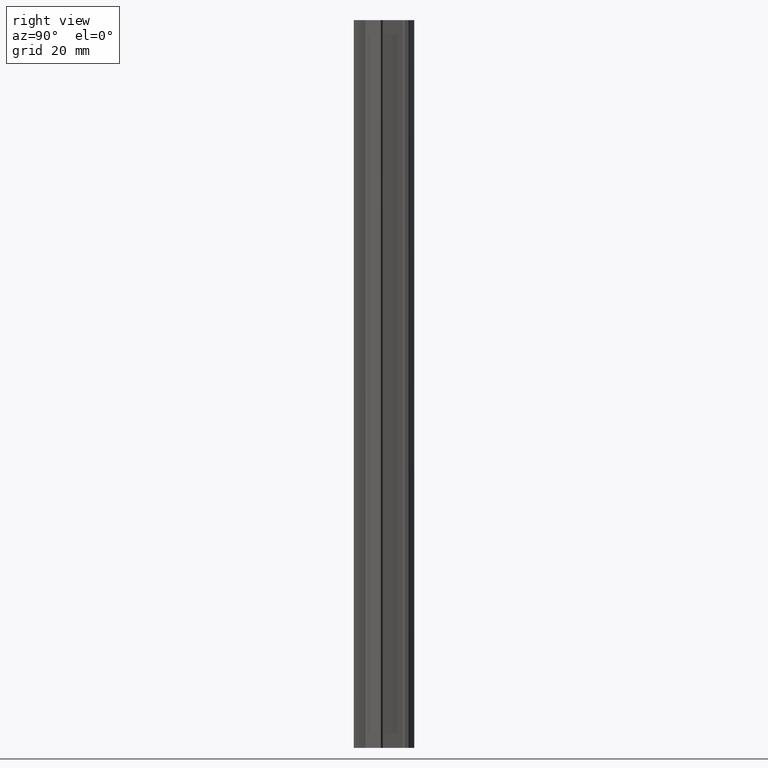
[diagram: clean part render]
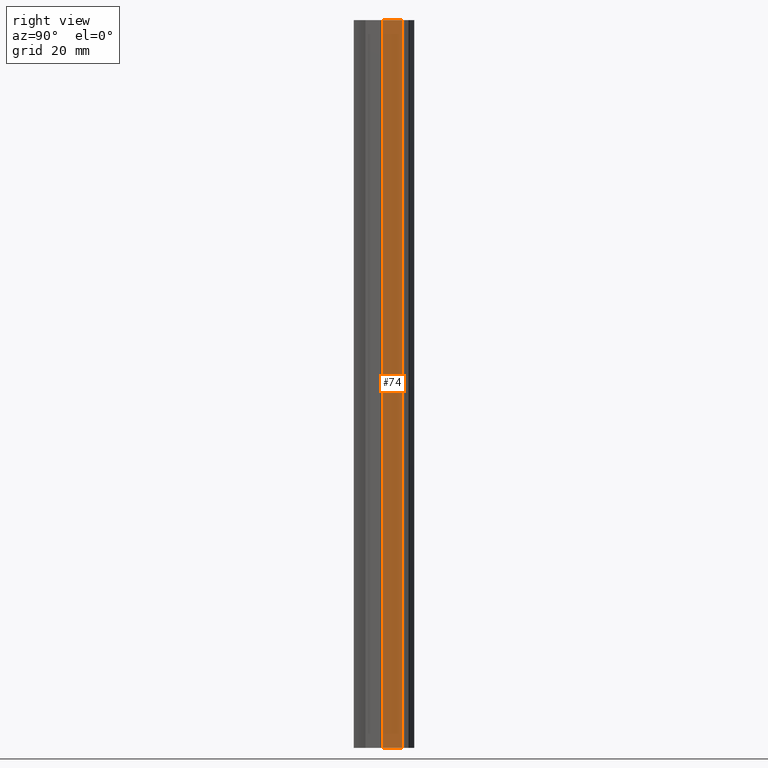
[diagram: same view with one face highlighted and labeled with its STEP entity id]
A machine part, right view. The second image highlights one B-rep face of the part: STEP entity #74.
In plain terms, the highlighted planar face has unit normal (0.9924, -0.1233, 0).
Its self-contained STEP definition (entity closure, byte-faithful):
#9=CARTESIAN_POINT('',(3.627106216672928,4.112776414931432,0.0));
#10=VERTEX_POINT('',#9);
#18=CARTESIAN_POINT('',(3.627106216672928,4.112776414931432,156.662099546738520));
#19=VERTEX_POINT('',#18);
#20=CARTESIAN_POINT('',(3.627106216672928,4.112776414931432,0.0));
#21=DIRECTION('',(0.0,0.0,1.0));
#22=VECTOR('',#21,156.662099546738520);
#23=LINE('',#20,#22);
#24=EDGE_CURVE('',#10,#19,#23,.T.);
#44=CARTESIAN_POINT('',(3.600855590343144,3.901568023608888,-7.833104977336927));
#45=DIRECTION('',(0.992364618783426,-0.123338815410339,0.0));
#46=DIRECTION('',(0.123338815410339,0.992364618783426,0.0));
#47=AXIS2_PLACEMENT_3D('',#44,#45,#46);
#48=PLANE('',#47);
#49=CARTESIAN_POINT('',(4.152118743265419,8.336944241380479,0.0));
#50=VERTEX_POINT('',#49);
#51=CARTESIAN_POINT('',(3.627106216672928,4.112776414931432,0.0));
#52=DIRECTION('',(0.123338815410290,0.992364618783432,0.0));
#53=VECTOR('',#52,4.256669117876829);
#54=LINE('',#51,#53);
#55=EDGE_CURVE('',#10,#50,#54,.T.);
#56=ORIENTED_EDGE('',*,*,#55,.T.);
#57=CARTESIAN_POINT('',(4.152118743265419,8.336944241380479,156.662099546738520));
#58=VERTEX_POINT('',#57);
#59=CARTESIAN_POINT('',(4.152118743265419,8.336944241380479,0.0));
#60=DIRECTION('',(0.0,0.0,1.0));
#61=VECTOR('',#60,156.662099546738520);
#62=LINE('',#59,#61);
#63=EDGE_CURVE('',#50,#58,#62,.T.);
#64=ORIENTED_EDGE('',*,*,#63,.T.);
#65=CARTESIAN_POINT('',(3.627106216672928,4.112776414931432,156.662099546738520));
#66=DIRECTION('',(0.123338815410290,0.992364618783432,0.0));
#67=VECTOR('',#66,4.256669117876829);
#68=LINE('',#65,#67);
#69=EDGE_CURVE('',#19,#58,#68,.T.);
#70=ORIENTED_EDGE('',*,*,#69,.F.);
#71=ORIENTED_EDGE('',*,*,#24,.F.);
#72=EDGE_LOOP('',(#56,#64,#70,#71));
#73=FACE_OUTER_BOUND('',#72,.T.);
#74=ADVANCED_FACE('',(#73),#48,.T.);